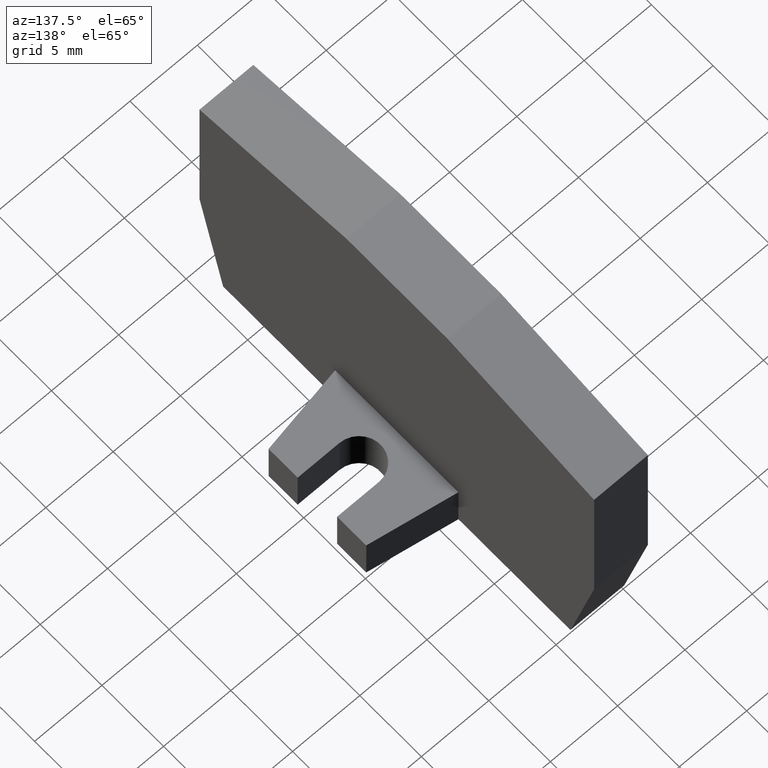
[diagram: clean part render]
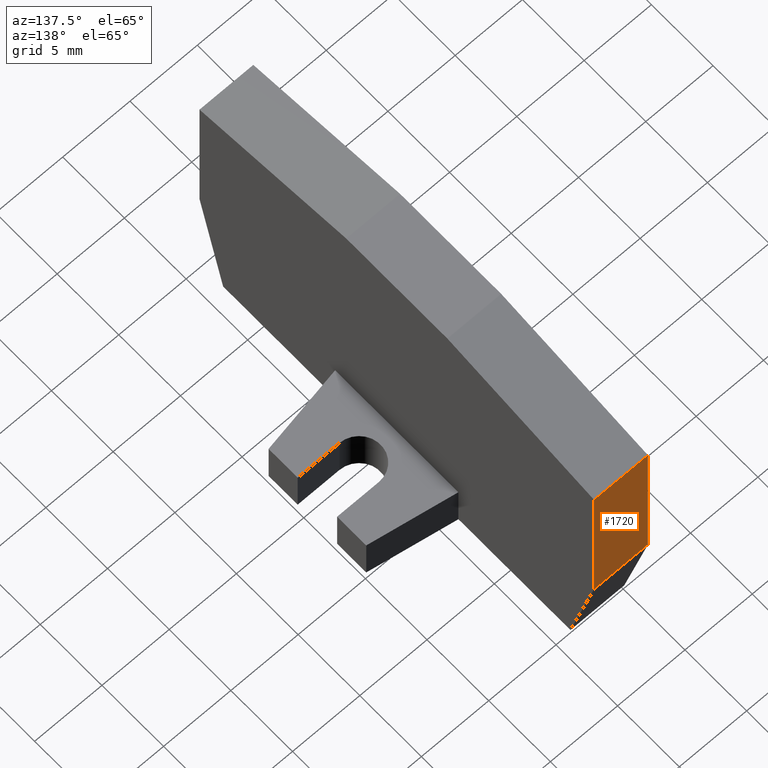
[diagram: same view with one face highlighted and labeled with its STEP entity id]
A machine part, auxiliary view. The second image highlights one B-rep face of the part: STEP entity #1720.
In plain terms, the highlighted planar face has unit normal (0, 1, 0).
Its self-contained STEP definition (entity closure, byte-faithful):
#1330=CARTESIAN_POINT('',(27.9335529569937,122.19994960493,
3.8277564886281));
#1340=DIRECTION('',(1.,0.,0.));
#1350=DIRECTION('',(0.,-1.,0.));
#1360=AXIS2_PLACEMENT_3D('',#1330,#1340,#1350);
#1370=PLANE('',#1360);
#1380=CARTESIAN_POINT('',(27.9335529569937,122.790993259522,
3.8277564886281));
#1390=DIRECTION('',(0.,-1.,-6.3108872417681E-30));
#1400=VECTOR('',#1390,1.);
#1410=LINE('',#1380,#1400);
#1420=CARTESIAN_POINT('',(27.9335529569937,122.619499420518,
3.8277564886281));
#1430=VERTEX_POINT('',#1420);
#1440=CARTESIAN_POINT('',(27.9335529569937,111.01779049095,
3.8277564886281));
#1450=VERTEX_POINT('',#1440);
#1460=EDGE_CURVE('',#1430,#1450,#1410,.T.);
#1470=ORIENTED_EDGE('',*,*,#1460,.F.);
#1480=CARTESIAN_POINT('',(27.9335529569937,111.01779049095,
3.8277564886281));
#1490=DIRECTION('',(0.,0.,1.));
#1500=VECTOR('',#1490,1.);
#1510=LINE('',#1480,#1500);
#1520=CARTESIAN_POINT('',(27.9335529569937,111.01779049095,
7.8277564886281));
#1530=VERTEX_POINT('',#1520);
#1540=EDGE_CURVE('',#1450,#1530,#1510,.T.);
#1550=ORIENTED_EDGE('',*,*,#1540,.F.);
#1560=CARTESIAN_POINT('',(27.9335529569937,122.790993259522,
7.8277564886281));
#1570=DIRECTION('',(0.,1.,0.));
#1580=VECTOR('',#1570,1.);
#1590=LINE('',#1560,#1580);
#1600=CARTESIAN_POINT('',(27.9335529569937,122.619499420518,
7.8277564886281));
#1610=VERTEX_POINT('',#1600);
#1620=EDGE_CURVE('',#1530,#1610,#1590,.T.);
#1630=ORIENTED_EDGE('',*,*,#1620,.F.);
#1640=CARTESIAN_POINT('',(27.9335529569937,122.619499420518,
3.8277564886281));
#1650=DIRECTION('',(0.,0.,-1.));
#1660=VECTOR('',#1650,1.);
#1670=LINE('',#1640,#1660);
#1680=EDGE_CURVE('',#1610,#1430,#1670,.T.);
#1690=ORIENTED_EDGE('',*,*,#1680,.F.);
#1700=EDGE_LOOP('',(#1690,#1630,#1550,#1470));
#1710=FACE_OUTER_BOUND('',#1700,.T.);
#1720=ADVANCED_FACE('',(#1710),#1370,.T.);